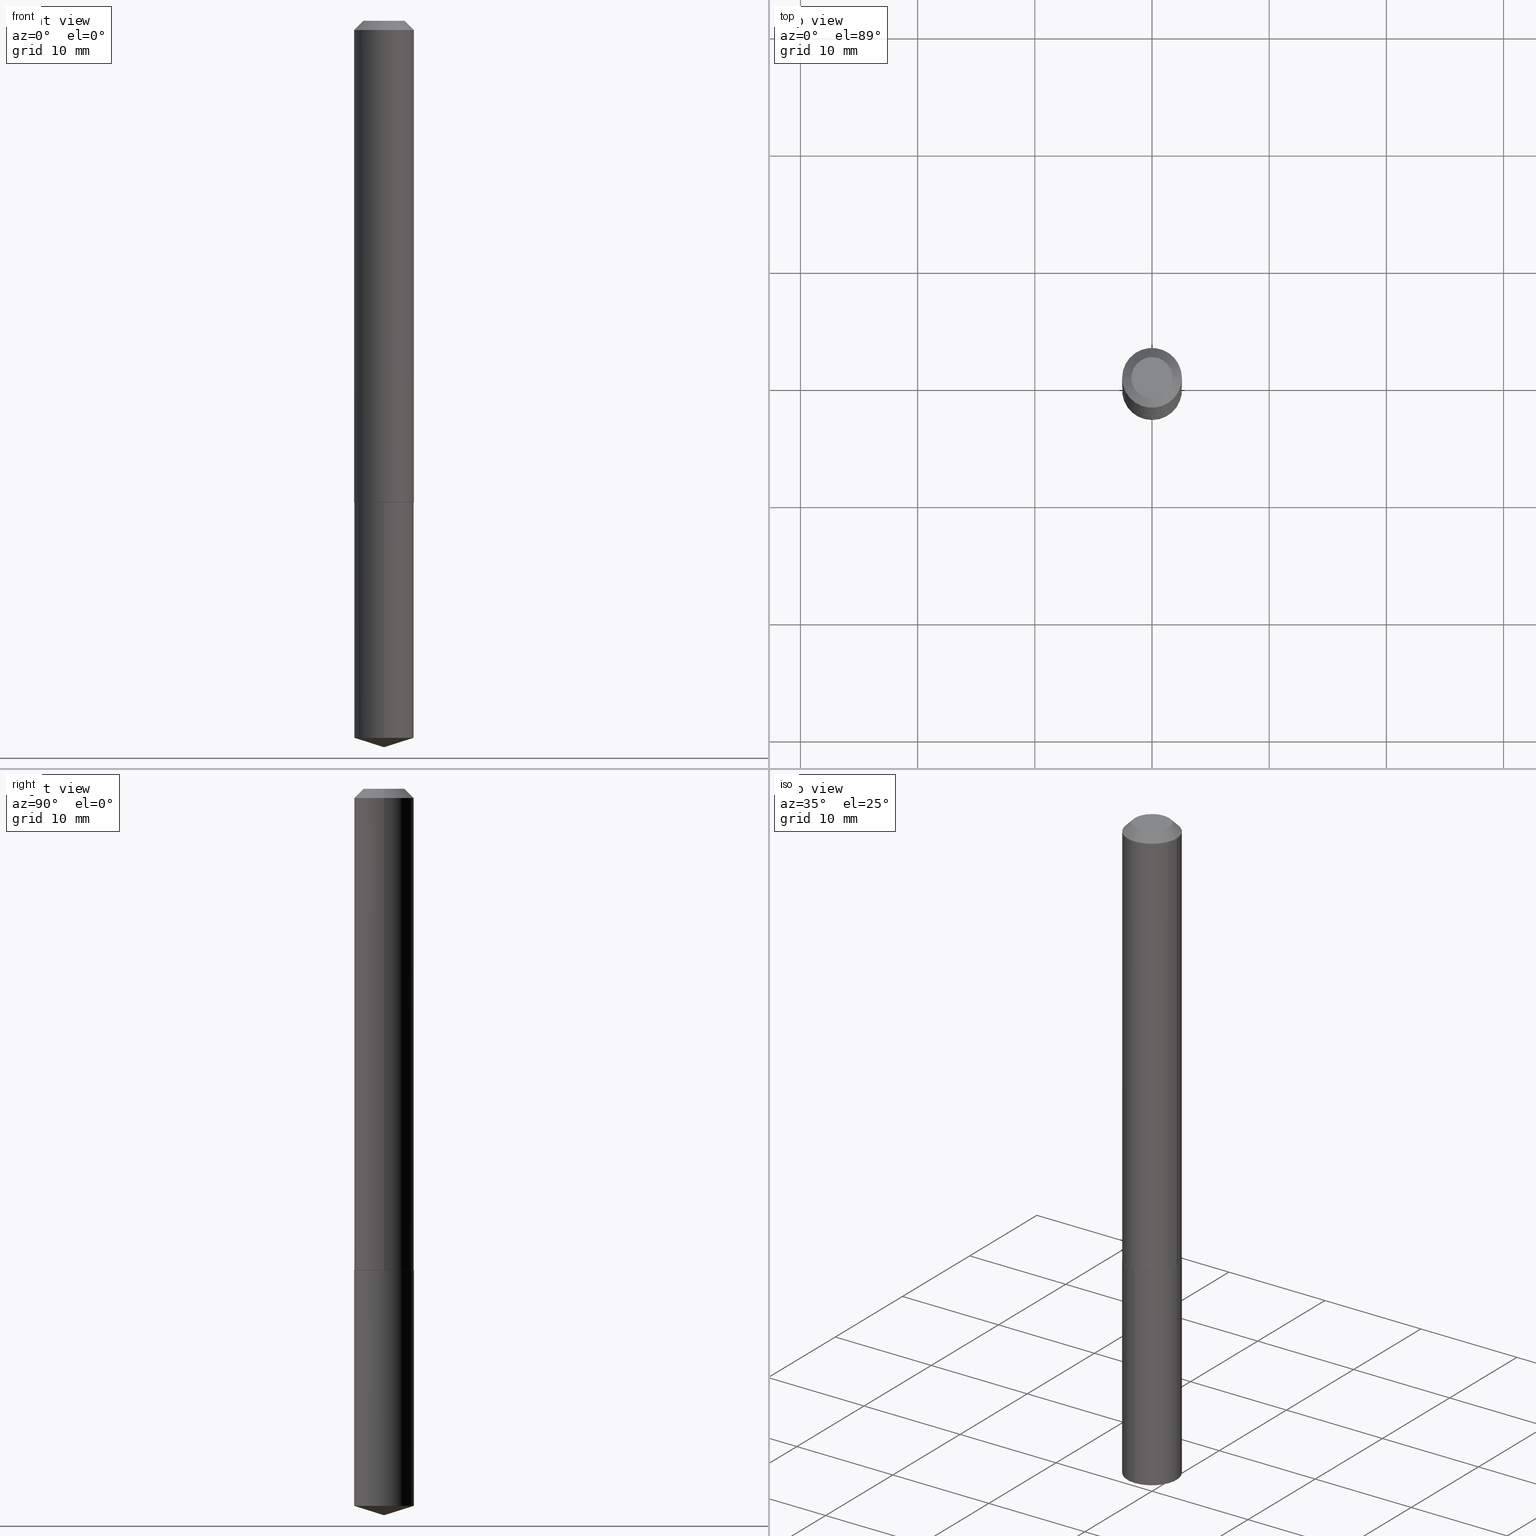
[diagram: canonical four-view strip — front | top / right | iso, engineering-drawing reading convention]
A machine part, canonical four-view strip (front | top / right | iso — engineering-drawing reading convention). The complete STEP part file that produces these views, byte-faithful:
ISO-10303-21;
HEADER;
FILE_DESCRIPTION (( 'STEP AP203' ),
    '1' );
FILE_NAME ('68699.STEP',
    '2024-04-23T13:41:58',
    ( '' ),
    ( '' ),
    'SwSTEP 2.0',
    'SolidWorks 2023',
    '' );
FILE_SCHEMA (( 'CONFIG_CONTROL_DESIGN' ));
ENDSEC;

DATA;
#1 = FACE_OUTER_BOUND ( 'NONE', #79, .T. ) ;
#2 = CARTESIAN_POINT ( 'NONE',  ( 0.1004000000000002113, -6.348909666552376614E-15, -1.617600000000000149 ) ) ;
#3 = ADVANCED_BREP_SHAPE_REPRESENTATION ( '68699', ( #178, #306, #172 ), #60 ) ;
#4 = FACE_OUTER_BOUND ( 'NONE', #185, .T. ) ;
#5 = CALENDAR_DATE ( 2024, 23, 4 ) ;
#6 = DIRECTION ( 'NONE',  ( -2.438088387897960049E-29, 3.491481338843145188E-15, 1.000000000000000000 ) ) ;
#7 = AXIS2_PLACEMENT_3D ( 'NONE', #35, #132, #333 ) ;
#8 = CC_DESIGN_APPROVAL ( #317, ( #89 ) ) ;
#9 = EDGE_CURVE ( 'NONE', #370, #316, #155, .T. ) ;
#10 = APPROVAL_ROLE ( '' ) ;
#11 = DIRECTION ( 'NONE',  ( -6.982962677686266711E-15, -1.000000000000000000, 2.720964137115799877E-15 ) ) ;
#12 = CIRCLE ( 'NONE', #161, 0.06915000000000000313 ) ;
#13 = CIRCLE ( 'NONE', #229, 0.06915000000000000313 ) ;
#14 = ORIENTED_EDGE ( 'NONE', *, *, #142, .F. ) ;
#15 = DIRECTION ( 'NONE',  ( -2.445468806185136597E-29, 3.491481338843145583E-15, 1.000000000000000000 ) ) ;
#16 = DIRECTION ( 'NONE',  ( -2.445468806185136597E-29, 3.491481338843145583E-15, 1.000000000000000000 ) ) ;
#17 = EDGE_CURVE ( 'NONE', #33, #53, #357, .T. ) ;
#18 = ORIENTED_EDGE ( 'NONE', *, *, #280, .T. ) ;
#19 = CC_DESIGN_APPROVAL ( #192, ( #324 ) ) ;
#20 = COORDINATED_UNIVERSAL_TIME_OFFSET ( 5, 0, .BEHIND. ) ;
#21 = CC_DESIGN_SECURITY_CLASSIFICATION ( #89, ( #74 ) ) ;
#22 = CIRCLE ( 'NONE', #241, 0.1004000000000000031 ) ;
#23 = ORIENTED_EDGE ( 'NONE', *, *, #142, .T. ) ;
#24 = DIRECTION ( 'NONE',  ( 1.000000000000000000, -6.982962677686267499E-15, 0.000000000000000000 ) ) ;
#25 = PERSON_AND_ORGANIZATION_ROLE ( 'classification_officer' ) ;
#26 = ORIENTED_EDGE ( 'NONE', *, *, #27, .T. ) ;
#27 = EDGE_CURVE ( 'NONE', #139, #370, #135, .T. ) ;
#28 = CIRCLE ( 'NONE', #136, 0.1004000000000000170 ) ;
#29 = DIRECTION ( 'NONE',  ( -2.445476300407817820E-29, 3.491470606689721326E-15, 1.000000000000000000 ) ) ;
#30 = MECHANICAL_CONTEXT ( 'NONE', #145, 'mechanical' ) ;
#31 = CC_DESIGN_PERSON_AND_ORGANIZATION_ASSIGNMENT ( #59, #25, ( #89 ) ) ;
#32 = DIRECTION ( 'NONE',  ( -6.982962677686268288E-15, -1.000000000000000000, 3.500519750498693782E-15 ) ) ;
#33 = VERTEX_POINT ( 'NONE', #334 ) ;
#34 = DIRECTION ( 'NONE',  ( -6.659769872151633666E-15, -0.9537169507482269326, 0.3007057995042729526 ) ) ;
#35 = CARTESIAN_POINT ( 'NONE',  ( 7.642090019328601786E-31, -1.091087918388490144E-16, -0.03125000000000020123 ) ) ;
#36 = PRODUCT ( '68699', '68699', '', ( #30 ) ) ;
#37 = AXIS2_PLACEMENT_3D ( 'NONE', #276, #63, #32 ) ;
#38 = FACE_OUTER_BOUND ( 'NONE', #239, .T. ) ;
#39 = CARTESIAN_POINT ( 'NONE',  ( 7.133849067031800519E-16, 0.1003999999999943549, -1.618100000000000316 ) ) ;
#40 = CONICAL_SURFACE ( 'NONE', #7, 0.1004000000000000170, 0.7853981633974452814 ) ;
#41 = CARTESIAN_POINT ( 'NONE',  ( 0.1004000000000000170, -7.979027908151110397E-16, -0.03125000000000020123 ) ) ;
#42 = EDGE_CURVE ( 'NONE', #139, #195, #22, .T. ) ;
#43 = EDGE_CURVE ( 'NONE', #195, #139, #277, .T. ) ;
#44 = DIRECTION ( 'NONE',  ( 2.445476300407817259E-29, -3.491470606689721721E-15, -1.000000000000000000 ) ) ;
#45 = ORIENTED_EDGE ( 'NONE', *, *, #292, .F. ) ;
#46 = CARTESIAN_POINT ( 'NONE',  ( 0.1004000000000001142, -7.010894528397019642E-16, 4.895681482899124760E-30 ) ) ;
#47 = VERTEX_POINT ( 'NONE', #359 ) ;
#48 = DIRECTION ( 'NONE',  ( -1.000000000000000000, 6.982962677686266711E-15, 0.000000000000000000 ) ) ;
#49 = ORIENTED_EDGE ( 'NONE', *, *, #43, .F. ) ;
#50 = DIRECTION ( 'NONE',  ( 2.445468806185136597E-29, -3.491481338843145583E-15, -1.000000000000000000 ) ) ;
#51 = PERSON_AND_ORGANIZATION ( #194, #193 ) ;
#52 = CC_DESIGN_DATE_AND_TIME_ASSIGNMENT ( #213, #321, ( #324 ) ) ;
#53 = VERTEX_POINT ( 'NONE', #70 ) ;
#54 = CARTESIAN_POINT ( 'NONE',  ( 3.955790340885077095E-29, -5.647820213712673171E-15, -1.617600000000000149 ) ) ;
#55 = CONICAL_SURFACE ( 'NONE', #114, 0.1004000000000000170, 0.7853981633974452814 ) ;
#56 = CIRCLE ( 'NONE', #91, 0.1004000000000002113 ) ;
#57 = ORIENTED_EDGE ( 'NONE', *, *, #338, .F. ) ;
#58 = DIRECTION ( 'NONE',  ( -2.445476300407817820E-29, 3.491470606689721326E-15, 1.000000000000000000 ) ) ;
#59 = PERSON_AND_ORGANIZATION ( #194, #193 ) ;
#60 =( GEOMETRIC_REPRESENTATION_CONTEXT ( 3 ) GLOBAL_UNCERTAINTY_ASSIGNED_CONTEXT ( ( #369 ) ) GLOBAL_UNIT_ASSIGNED_CONTEXT ( ( #64, #350, #209 ) ) REPRESENTATION_CONTEXT ( 'NONE', 'WORKASPACE' ) );
#61 = CARTESIAN_POINT ( 'NONE',  ( -0.1004000000000001142, 7.133849067031413977E-16, -4.938610830615930599E-30 ) ) ;
#62 = ADVANCED_FACE ( 'NONE', ( #38 ), #304, .T. ) ;
#63 = DIRECTION ( 'NONE',  ( -2.445476300407817820E-29, 3.491470606689721326E-15, 1.000000000000000000 ) ) ;
#64 =( CONVERSION_BASED_UNIT ( 'INCH', #176 ) LENGTH_UNIT ( ) NAMED_UNIT ( #71 ) );
#65 = EDGE_LOOP ( 'NONE', ( #339, #270, #92, #271 ) ) ;
#66 = DIRECTION ( 'NONE',  ( 1.000000000000000000, -6.982962677686266711E-15, 4.876176775795935232E-29 ) ) ;
#67 = CARTESIAN_POINT ( 'NONE',  ( -7.010894528396423066E-16, -0.1004000000000084408, -2.409244001596550167 ) ) ;
#68 = LOCAL_TIME ( 9, 41, 58.00000000000000000, #122 ) ;
#69 = DIRECTION ( 'NONE',  ( -6.982962677686266711E-15, -1.000000000000000000, 2.720964137115799877E-15 ) ) ;
#70 = CARTESIAN_POINT ( 'NONE',  ( 0.1004000000000000170, -8.101982446785503746E-16, -0.03125000000000020123 ) ) ;
#71 = DIMENSIONAL_EXPONENTS ( 1.000000000000000000, 0.000000000000000000, 0.000000000000000000, 0.000000000000000000, 0.000000000000000000, 0.000000000000000000, 0.000000000000000000 ) ;
#72 = APPROVAL ( #86, 'UNSPECIFIED' ) ;
#73 = EDGE_CURVE ( 'NONE', #33, #299, #13, .T. ) ;
#74 = PRODUCT_DEFINITION_FORMATION_WITH_SPECIFIED_SOURCE ( 'ANY', '', #36, .NOT_KNOWN. ) ;
#75 = AXIS2_PLACEMENT_3D ( 'NONE', #152, #298, #96 ) ;
#76 = DIRECTION ( 'NONE',  ( 1.000000000000000000, -6.982962677686261977E-15, 0.000000000000000000 ) ) ;
#77 = EDGE_LOOP ( 'NONE', ( #211, #169 ) ) ;
#78 = CARTESIAN_POINT ( 'NONE',  ( -7.010894528396616337E-16, -0.1004000000000056514, -1.618099999999999872 ) ) ;
#79 = EDGE_LOOP ( 'NONE', ( #57, #263 ) ) ;
#80 = CARTESIAN_POINT ( 'NONE',  ( 7.133849067031995762E-16, 0.1003999999999943549, -1.618100000000000316 ) ) ;
#81 = VERTEX_POINT ( 'NONE', #384 ) ;
#82 = DATE_AND_TIME ( #116, #228 ) ;
#83 = ORIENTED_EDGE ( 'NONE', *, *, #27, .F. ) ;
#84 = CARTESIAN_POINT ( 'NONE',  ( -2.919964657261610798E-48, 4.168935659749573735E-34, 1.194030629168676459E-19 ) ) ;
#85 = EDGE_CURVE ( 'NONE', #288, #47, #219, .T. ) ;
#86 = APPROVAL_STATUS ( 'not_yet_approved' ) ;
#87 = ORIENTED_EDGE ( 'NONE', *, *, #361, .T. ) ;
#88 = VECTOR ( 'NONE', #34, 39.37007874015748854 ) ;
#89 = SECURITY_CLASSIFICATION ( '', '', #290 ) ;
#90 = PRODUCT_DEFINITION_SHAPE ( 'NONE', 'NONE',  #324 ) ;
#91 = AXIS2_PLACEMENT_3D ( 'NONE', #154, #221, #222 ) ;
#92 = ORIENTED_EDGE ( 'NONE', *, *, #292, .T. ) ;
#93 = DIRECTION ( 'NONE',  ( 0.000000000000000000, 0.000000000000000000, 1.000000000000000000 ) ) ;
#94 = CC_DESIGN_DATE_AND_TIME_ASSIGNMENT ( #235, #177, ( #89 ) ) ;
#95 = EDGE_LOOP ( 'NONE', ( #128, #26, #141, #268 ) ) ;
#96 = DIRECTION ( 'NONE',  ( -6.982962677686268288E-15, -1.000000000000000000, 3.500519750498693782E-15 ) ) ;
#97 = EDGE_CURVE ( 'NONE', #157, #195, #100, .T. ) ;
#98 = ORIENTED_EDGE ( 'NONE', *, *, #42, .T. ) ;
#99 = DIRECTION ( 'NONE',  ( 1.000000000000000000, -6.982962677686267499E-15, 4.876193722628741627E-29 ) ) ;
#100 = LINE ( 'NONE', #130, #88 ) ;
#101 = CARTESIAN_POINT ( 'NONE',  ( 5.891736981402338159E-29, -8.411821981615335412E-15, -2.409244001596550611 ) ) ;
#102 = ADVANCED_FACE ( 'NONE', ( #253 ), #120, .T. ) ;
#103 = CARTESIAN_POINT ( 'NONE',  ( 5.891736981402338159E-29, -8.411821981615335412E-15, -2.409244001596550611 ) ) ;
#104 = VECTOR ( 'NONE', #278, 39.37007874015748143 ) ;
#105 = ADVANCED_FACE ( 'NONE', ( #356 ), #106, .T. ) ;
#106 = CYLINDRICAL_SURFACE ( 'NONE', #108, 0.1004000000000000031 ) ;
#107 = VECTOR ( 'NONE', #181, 39.37007874015748143 ) ;
#108 = AXIS2_PLACEMENT_3D ( 'NONE', #362, #251, #69 ) ;
#109 = DIRECTION ( 'NONE',  ( 0.7071067811867165487, -2.468850131084027659E-15, 0.7071067811863784858 ) ) ;
#110 = ORIENTED_EDGE ( 'NONE', *, *, #146, .F. ) ;
#111 = DIRECTION ( 'NONE',  ( 6.776566513254258926E-15, 0.9537169507482290420, 0.3007057995042663467 ) ) ;
#112 = PERSON_AND_ORGANIZATION ( #194, #193 ) ;
#113 = EDGE_LOOP ( 'NONE', ( #379, #218, #14, #272 ) ) ;
#114 = AXIS2_PLACEMENT_3D ( 'NONE', #315, #50, #48 ) ;
#115 = DIRECTION ( 'NONE',  ( -2.445468806185136597E-29, 3.491481338843145583E-15, 1.000000000000000000 ) ) ;
#116 = CALENDAR_DATE ( 2024, 23, 4 ) ;
#117 = LINE ( 'NONE', #46, #265 ) ;
#118 = ORIENTED_EDGE ( 'NONE', *, *, #377, .F. ) ;
#119 = PERSON_AND_ORGANIZATION_ROLE ( 'design_supplier' ) ;
#120 = CONICAL_SURFACE ( 'NONE', #37, 124.8659371009154455, 1.265363707695892570 ) ;
#121 = AXIS2_PLACEMENT_3D ( 'NONE', #166, #15, #24 ) ;
#122 = COORDINATED_UNIVERSAL_TIME_OFFSET ( 5, 0, .BEHIND. ) ;
#123 = CALENDAR_DATE ( 2024, 23, 4 ) ;
#124 = CARTESIAN_POINT ( 'NONE',  ( -0.1004000000000000170, 5.919806610008522719E-16, -0.03125000000000020123 ) ) ;
#125 = DIRECTION ( 'NONE',  ( 1.000000000000000000, -6.982962677686267499E-15, 4.876193722628741627E-29 ) ) ;
#126 = CC_DESIGN_PERSON_AND_ORGANIZATION_ASSIGNMENT ( #171, #375, ( #324 ) ) ;
#127 = CIRCLE ( 'NONE', #133, 0.1004000000000000031 ) ;
#128 = ORIENTED_EDGE ( 'NONE', *, *, #43, .T. ) ;
#129 = CARTESIAN_POINT ( 'NONE',  ( 0.000000000000000000, 0.000000000000000000, 0.000000000000000000 ) ) ;
#130 = CARTESIAN_POINT ( 'NONE',  ( 5.969138848862001907E-29, -8.522365335263852406E-15, -2.440900000000000070 ) ) ;
#131 = DIRECTION ( 'NONE',  ( -0.7071067811867165487, 7.493145998870964739E-15, 0.7071067811863784858 ) ) ;
#132 = DIRECTION ( 'NONE',  ( 2.445468806185136597E-29, -3.491481338843145583E-15, -1.000000000000000000 ) ) ;
#133 = AXIS2_PLACEMENT_3D ( 'NONE', #337, #231, #11 ) ;
#134 = CC_DESIGN_PERSON_AND_ORGANIZATION_ASSIGNMENT ( #380, #347, ( #36 ) ) ;
#135 = LINE ( 'NONE', #39, #158 ) ;
#136 = AXIS2_PLACEMENT_3D ( 'NONE', #255, #309, #293 ) ;
#137 = CIRCLE ( 'NONE', #351, 0.1004000000000002113 ) ;
#138 = CARTESIAN_POINT ( 'NONE',  ( -0.06915000000000000313, 5.374262650814288063E-16, 2.388061258301678436E-19 ) ) ;
#139 = VERTEX_POINT ( 'NONE', #301 ) ;
#140 = PLANE ( 'NONE',  #254 ) ;
#141 = ORIENTED_EDGE ( 'NONE', *, *, #296, .F. ) ;
#142 = EDGE_CURVE ( 'NONE', #236, #47, #56, .T. ) ;
#143 = VECTOR ( 'NONE', #330, 39.37007874015748143 ) ;
#144 = CALENDAR_DATE ( 2024, 23, 4 ) ;
#145 = APPLICATION_CONTEXT ( 'configuration controlled 3d designs of mechanical parts and assemblies' ) ;
#146 = EDGE_CURVE ( 'NONE', #47, #236, #137, .T. ) ;
#147 = FACE_OUTER_BOUND ( 'NONE', #77, .T. ) ;
#148 = APPROVAL_ROLE ( '' ) ;
#149 = ORIENTED_EDGE ( 'NONE', *, *, #17, .F. ) ;
#150 = AXIS2_PLACEMENT_3D ( 'NONE', #129, #220, #66 ) ;
#151 = EDGE_LOOP ( 'NONE', ( #310, #215, #18, #204 ) ) ;
#152 = CARTESIAN_POINT ( 'NONE',  ( -9.030944352898107667E-28, 1.289371247347533439E-13, 36.92917874015748225 ) ) ;
#153 = DIRECTION ( 'NONE',  ( -2.445468806185136597E-29, 3.491481338843145583E-15, 1.000000000000000000 ) ) ;
#154 = CARTESIAN_POINT ( 'NONE',  ( 3.955790340885077095E-29, -5.647820213712673171E-15, -1.617600000000000149 ) ) ;
#155 = CIRCLE ( 'NONE', #368, 0.1004000000000000031 ) ;
#156 = AXIS2_PLACEMENT_3D ( 'NONE', #202, #230, #199 ) ;
#157 = VERTEX_POINT ( 'NONE', #186 ) ;
#158 = VECTOR ( 'NONE', #224, 39.37007874015748143 ) ;
#159 = LINE ( 'NONE', #297, #104 ) ;
#160 = DIRECTION ( 'NONE',  ( 1.000000000000000000, -6.982962677686267499E-15, 0.000000000000000000 ) ) ;
#161 = AXIS2_PLACEMENT_3D ( 'NONE', #249, #303, #99 ) ;
#162 = ADVANCED_FACE ( 'NONE', ( #4 ), #275, .T. ) ;
#163 = EDGE_LOOP ( 'NONE', ( #322, #283, #349, #110 ) ) ;
#164 = APPROVAL_DATE_TIME ( #191, #192 ) ;
#165 = AXIS2_PLACEMENT_3D ( 'NONE', #312, #115, #76 ) ;
#166 = CARTESIAN_POINT ( 'NONE',  ( 3.955790340885077095E-29, -5.647820213712673171E-15, -1.617600000000000149 ) ) ;
#167 = EDGE_LOOP ( 'NONE', ( #295, #207 ) ) ;
#168 = CARTESIAN_POINT ( 'NONE',  ( 7.642090019328601786E-31, -1.091087918388490144E-16, -0.03125000000000020123 ) ) ;
#169 = ORIENTED_EDGE ( 'NONE', *, *, #73, .T. ) ;
#170 = DESIGN_CONTEXT ( 'detailed design', #248, 'design' ) ;
#171 = PERSON_AND_ORGANIZATION ( #194, #193 ) ;
#172 = AXIS2_PLACEMENT_3D ( 'NONE', #352, #93, #214 ) ;
#173 = DIRECTION ( 'NONE',  ( 1.000000000000000000, -6.982962677686267499E-15, 0.000000000000000000 ) ) ;
#174 = ORIENTED_EDGE ( 'NONE', *, *, #212, .T. ) ;
#175 = DIRECTION ( 'NONE',  ( -6.982962677686266711E-15, -1.000000000000000000, 2.720964137115799877E-15 ) ) ;
#176 = LENGTH_MEASURE_WITH_UNIT ( LENGTH_MEASURE( 0.02539999999999999897 ), #289 );
#177 = DATE_TIME_ROLE ( 'classification_date' ) ;
#178 = MANIFOLD_SOLID_BREP ( 'Body-Move/Copy2[1]', #210 ) ;
#179 = APPLICATION_PROTOCOL_DEFINITION ( 'international standard', 'config_control_design', 1994, #145 ) ;
#180 = CIRCLE ( 'NONE', #358, 0.1004000000000000170 ) ;
#181 = DIRECTION ( 'NONE',  ( -2.445468806185136877E-29, 3.491481338843145188E-15, 1.000000000000000000 ) ) ;
#182 = PRODUCT_RELATED_PRODUCT_CATEGORY ( 'detail', '', ( #36 ) ) ;
#183 = APPLICATION_PROTOCOL_DEFINITION ( 'international standard', 'config_control_design', 1994, #248 ) ;
#184 = DIRECTION ( 'NONE',  ( -2.445468806185136597E-29, 3.491481338843145583E-15, 1.000000000000000000 ) ) ;
#185 = EDGE_LOOP ( 'NONE', ( #23, #243, #346, #45 ) ) ;
#186 = CARTESIAN_POINT ( 'NONE',  ( 5.969163101665442334E-29, -8.522330603868942741E-15, -2.440900000000000070 ) ) ;
#187 = LOCAL_TIME ( 9, 41, 58.00000000000000000, #226 ) ;
#188 = DIRECTION ( 'NONE',  ( -6.982962677686266711E-15, -1.000000000000000000, 2.720964137115799877E-15 ) ) ;
#189 = CARTESIAN_POINT ( 'NONE',  ( 7.046853999723116167E-29, -1.224737887767343229E-15, -1.618099999999999872 ) ) ;
#190 = EDGE_CURVE ( 'NONE', #47, #81, #273, .T. ) ;
#191 = DATE_AND_TIME ( #5, #187 ) ;
#192 = APPROVAL ( #300, 'UNSPECIFIED' ) ;
#193 = ORGANIZATION ( 'UNSPECIFIED', 'UNSPECIFIED', '' ) ;
#194 = PERSON ( 'UNSPECIFIED', 'UNSPECIFIED', 'UNSPECIFIED', ('UNSPECIFIED'), ('UNSPECIFIED'), ('UNSPECIFIED') ) ;
#195 = VERTEX_POINT ( 'NONE', #67 ) ;
#196 = FACE_OUTER_BOUND ( 'NONE', #163, .T. ) ;
#197 = ORIENTED_EDGE ( 'NONE', *, *, #9, .F. ) ;
#198 = AXIS2_PLACEMENT_3D ( 'NONE', #388, #328, #279 ) ;
#199 = DIRECTION ( 'NONE',  ( -6.982962677686266711E-15, -1.000000000000000000, 2.720964137115799877E-15 ) ) ;
#200 = COORDINATED_UNIVERSAL_TIME_OFFSET ( 5, 0, .BEHIND. ) ;
#201 = ORIENTED_EDGE ( 'NONE', *, *, #42, .F. ) ;
#202 = CARTESIAN_POINT ( 'NONE',  ( 3.957013075288169897E-29, -5.649565954382093886E-15, -1.618100000000000094 ) ) ;
#203 = APPROVAL_DATE_TIME ( #82, #72 ) ;
#204 = ORIENTED_EDGE ( 'NONE', *, *, #212, .F. ) ;
#205 = FACE_OUTER_BOUND ( 'NONE', #113, .T. ) ;
#206 = PERSON_AND_ORGANIZATION_ROLE ( 'creator' ) ;
#207 = ORIENTED_EDGE ( 'NONE', *, *, #9, .T. ) ;
#208 = AXIS2_PLACEMENT_3D ( 'NONE', #329, #184, #366 ) ;
#209 =( NAMED_UNIT ( * ) SI_UNIT ( $, .STERADIAN. ) SOLID_ANGLE_UNIT ( ) );
#210 = CLOSED_SHELL ( 'NONE', ( #105, #62, #102, #381, #365 ) ) ;
#211 = ORIENTED_EDGE ( 'NONE', *, *, #237, .T. ) ;
#212 = EDGE_CURVE ( 'NONE', #299, #81, #360, .T. ) ;
#213 = DATE_AND_TIME ( #353, #68 ) ;
#214 = DIRECTION ( 'NONE',  ( 1.000000000000000000, 0.000000000000000000, 0.000000000000000000 ) ) ;
#215 = ORIENTED_EDGE ( 'NONE', *, *, #17, .T. ) ;
#216 = CARTESIAN_POINT ( 'NONE',  ( -0.1004000000000002113, -4.934435307009531477E-15, -1.617600000000000149 ) ) ;
#217 = SHAPE_DEFINITION_REPRESENTATION ( #90, #3 ) ;
#218 = ORIENTED_EDGE ( 'NONE', *, *, #85, .T. ) ;
#219 = LINE ( 'NONE', #216, #266 ) ;
#220 = DIRECTION ( 'NONE',  ( -2.445468806185136597E-29, 3.491481338843145583E-15, 1.000000000000000000 ) ) ;
#221 = DIRECTION ( 'NONE',  ( -2.445468806185136597E-29, 3.491481338843145583E-15, 1.000000000000000000 ) ) ;
#222 = DIRECTION ( 'NONE',  ( 1.000000000000000000, -6.982962677686267499E-15, 0.000000000000000000 ) ) ;
#223 = FACE_OUTER_BOUND ( 'NONE', #151, .T. ) ;
#224 = DIRECTION ( 'NONE',  ( -2.445476300407817820E-29, 3.491470606689721721E-15, 1.000000000000000000 ) ) ;
#225 = FACE_OUTER_BOUND ( 'NONE', #65, .T. ) ;
#226 = COORDINATED_UNIVERSAL_TIME_OFFSET ( 5, 0, .BEHIND. ) ;
#227 = EDGE_CURVE ( 'NONE', #195, #316, #159, .T. ) ;
#228 = LOCAL_TIME ( 9, 41, 58.00000000000000000, #262 ) ;
#229 = AXIS2_PLACEMENT_3D ( 'NONE', #386, #153, #125 ) ;
#230 = DIRECTION ( 'NONE',  ( -2.445476300407817820E-29, 3.491470606689721326E-15, 1.000000000000000000 ) ) ;
#231 = DIRECTION ( 'NONE',  ( -2.445476300407817820E-29, 3.491470606689721326E-15, 1.000000000000000000 ) ) ;
#232 = VERTEX_POINT ( 'NONE', #244 ) ;
#233 = CC_DESIGN_PERSON_AND_ORGANIZATION_ASSIGNMENT ( #51, #206, ( #74 ) ) ;
#234 = FACE_OUTER_BOUND ( 'NONE', #247, .T. ) ;
#235 = DATE_AND_TIME ( #144, #305 ) ;
#236 = VERTEX_POINT ( 'NONE', #2 ) ;
#237 = EDGE_CURVE ( 'NONE', #299, #33, #12, .T. ) ;
#238 = FACE_OUTER_BOUND ( 'NONE', #167, .T. ) ;
#239 = EDGE_LOOP ( 'NONE', ( #260, #319, #49 ) ) ;
#240 = DIRECTION ( 'NONE',  ( 1.000000000000000000, -6.982962677686266711E-15, 0.000000000000000000 ) ) ;
#241 = AXIS2_PLACEMENT_3D ( 'NONE', #101, #372, #378 ) ;
#242 = APPROVAL_PERSON_ORGANIZATION ( #112, #317, #148 ) ;
#243 = ORIENTED_EDGE ( 'NONE', *, *, #190, .T. ) ;
#244 = CARTESIAN_POINT ( 'NONE',  ( 0.09990000000000034963, -6.347163925882952744E-15, -1.618099999999999872 ) ) ;
#245 = ADVANCED_FACE ( 'NONE', ( #223 ), #40, .T. ) ;
#246 = AXIS2_PLACEMENT_3D ( 'NONE', #189, #6, #285 ) ;
#247 = EDGE_LOOP ( 'NONE', ( #83, #98, #286, #197 ) ) ;
#248 = APPLICATION_CONTEXT ( 'configuration controlled 3d designs of mechanical parts and assemblies' ) ;
#249 = CARTESIAN_POINT ( 'NONE',  ( -5.839929314523221596E-48, 8.337871319499147471E-34, 2.388061258337352918E-19 ) ) ;
#250 = PLANE ( 'NONE',  #246 ) ;
#251 = DIRECTION ( 'NONE',  ( -2.445476300407817820E-29, 3.491470606689721326E-15, 1.000000000000000000 ) ) ;
#252 = EDGE_CURVE ( 'NONE', #288, #232, #374, .T. ) ;
#253 = FACE_OUTER_BOUND ( 'NONE', #326, .T. ) ;
#254 = AXIS2_PLACEMENT_3D ( 'NONE', #84, #267, #282 ) ;
#255 = CARTESIAN_POINT ( 'NONE',  ( 7.642090019328601786E-31, -1.091087918388490144E-16, -0.03125000000000020123 ) ) ;
#256 = ADVANCED_FACE ( 'NONE', ( #225 ), #335, .T. ) ;
#257 = VECTOR ( 'NONE', #307, 39.37007874015748143 ) ;
#258 = CC_DESIGN_APPROVAL ( #72, ( #74 ) ) ;
#259 = CARTESIAN_POINT ( 'NONE',  ( -0.09990000000000034963, -4.937084534183641101E-15, -1.618099999999999872 ) ) ;
#260 = ORIENTED_EDGE ( 'NONE', *, *, #97, .F. ) ;
#261 = DIRECTION ( 'NONE',  ( -2.445468806185136597E-29, 3.491481338843145583E-15, 1.000000000000000000 ) ) ;
#262 = COORDINATED_UNIVERSAL_TIME_OFFSET ( 5, 0, .BEHIND. ) ;
#263 = ORIENTED_EDGE ( 'NONE', *, *, #252, .F. ) ;
#264 = CARTESIAN_POINT ( 'NONE',  ( 0.1004000000000002113, -6.348909666552376614E-15, -1.617600000000000149 ) ) ;
#265 = VECTOR ( 'NONE', #340, 39.37007874015748143 ) ;
#266 = VECTOR ( 'NONE', #131, 39.37007874015748143 ) ;
#267 = DIRECTION ( 'NONE',  ( 2.438088387897960049E-29, -3.491481338843145188E-15, -1.000000000000000000 ) ) ;
#268 = ORIENTED_EDGE ( 'NONE', *, *, #227, .F. ) ;
#269 = LINE ( 'NONE', #371, #336 ) ;
#270 = ORIENTED_EDGE ( 'NONE', *, *, #146, .T. ) ;
#271 = ORIENTED_EDGE ( 'NONE', *, *, #361, .F. ) ;
#272 = ORIENTED_EDGE ( 'NONE', *, *, #311, .F. ) ;
#273 = LINE ( 'NONE', #61, #107 ) ;
#274 = ADVANCED_FACE ( 'NONE', ( #1 ), #250, .F. ) ;
#275 = CYLINDRICAL_SURFACE ( 'NONE', #198, 0.1004000000000001142 ) ;
#276 = CARTESIAN_POINT ( 'NONE',  ( -9.030944352898107667E-28, 1.289371247347533439E-13, 36.92917874015748225 ) ) ;
#277 = CIRCLE ( 'NONE', #376, 0.1004000000000000031 ) ;
#278 = DIRECTION ( 'NONE',  ( -2.445476300407817820E-29, 3.491470606689721721E-15, 1.000000000000000000 ) ) ;
#279 = DIRECTION ( 'NONE',  ( 1.000000000000000000, -6.982962677686266711E-15, 4.876176775795935232E-29 ) ) ;
#280 = EDGE_CURVE ( 'NONE', #53, #81, #28, .T. ) ;
#281 = CIRCLE ( 'NONE', #165, 0.09990000000000034963 ) ;
#282 = DIRECTION ( 'NONE',  ( -1.000000000000000000, 6.982962677686265922E-15, -4.876176775795935793E-29 ) ) ;
#283 = ORIENTED_EDGE ( 'NONE', *, *, #252, .T. ) ;
#284 = LINE ( 'NONE', #264, #332 ) ;
#285 = DIRECTION ( 'NONE',  ( 1.000000000000000000, -6.982962677686265922E-15, 4.876176775795935793E-29 ) ) ;
#286 = ORIENTED_EDGE ( 'NONE', *, *, #227, .T. ) ;
#287 = FACE_OUTER_BOUND ( 'NONE', #341, .T. ) ;
#288 = VERTEX_POINT ( 'NONE', #259 ) ;
#289 =( LENGTH_UNIT ( ) NAMED_UNIT ( * ) SI_UNIT ( $, .METRE. ) );
#290 = SECURITY_CLASSIFICATION_LEVEL ( 'unclassified' ) ;
#291 = APPROVAL_PERSON_ORGANIZATION ( #294, #72, #318 ) ;
#292 = EDGE_CURVE ( 'NONE', #236, #53, #117, .T. ) ;
#293 = DIRECTION ( 'NONE',  ( 1.000000000000000000, -6.982962677686266711E-15, 0.000000000000000000 ) ) ;
#294 = PERSON_AND_ORGANIZATION ( #194, #193 ) ;
#295 = ORIENTED_EDGE ( 'NONE', *, *, #296, .T. ) ;
#296 = EDGE_CURVE ( 'NONE', #316, #370, #127, .T. ) ;
#297 = CARTESIAN_POINT ( 'NONE',  ( -7.010894528396616337E-16, -0.1004000000000056514, -1.618099999999999872 ) ) ;
#298 = DIRECTION ( 'NONE',  ( -2.445476300407817820E-29, 3.491470606689721326E-15, 1.000000000000000000 ) ) ;
#299 = VERTEX_POINT ( 'NONE', #138 ) ;
#300 = APPROVAL_STATUS ( 'not_yet_approved' ) ;
#301 = CARTESIAN_POINT ( 'NONE',  ( 7.133849067031996748E-16, 0.1003999999999916209, -2.409244001596551055 ) ) ;
#302 = PERSON_AND_ORGANIZATION ( #194, #193 ) ;
#303 = DIRECTION ( 'NONE',  ( -2.445468806185136597E-29, 3.491481338843145583E-15, 1.000000000000000000 ) ) ;
#304 = CONICAL_SURFACE ( 'NONE', #75, 124.8659371009154455, 1.265363707695892570 ) ;
#305 = LOCAL_TIME ( 9, 41, 58.00000000000000000, #20 ) ;
#306 = MANIFOLD_SOLID_BREP ( 'Body-Move/Copy2[2]', #389 ) ;
#307 = DIRECTION ( 'NONE',  ( 0.7071067811865453523, -7.319954787623248157E-15, -0.7071067811865496822 ) ) ;
#308 = ADVANCED_FACE ( 'NONE', ( #147 ), #140, .F. ) ;
#309 = DIRECTION ( 'NONE',  ( -2.445468806185136597E-29, 3.491481338843145583E-15, 1.000000000000000000 ) ) ;
#310 = ORIENTED_EDGE ( 'NONE', *, *, #73, .F. ) ;
#311 = EDGE_CURVE ( 'NONE', #232, #236, #284, .T. ) ;
#312 = CARTESIAN_POINT ( 'NONE',  ( 3.957013075288169336E-29, -5.649565954382093097E-15, -1.618099999999999872 ) ) ;
#313 = APPROVAL_PERSON_ORGANIZATION ( #302, #192, #10 ) ;
#314 = ORIENTED_EDGE ( 'NONE', *, *, #237, .F. ) ;
#315 = CARTESIAN_POINT ( 'NONE',  ( 7.642090019328601786E-31, -1.091087918388490144E-16, -0.03125000000000020123 ) ) ;
#316 = VERTEX_POINT ( 'NONE', #78 ) ;
#317 = APPROVAL ( #344, 'UNSPECIFIED' ) ;
#318 = APPROVAL_ROLE ( '' ) ;
#319 = ORIENTED_EDGE ( 'NONE', *, *, #377, .T. ) ;
#320 = CARTESIAN_POINT ( 'NONE',  ( 3.957013075288169897E-29, -5.649565954382093886E-15, -1.618100000000000094 ) ) ;
#321 = DATE_TIME_ROLE ( 'creation_date' ) ;
#322 = ORIENTED_EDGE ( 'NONE', *, *, #85, .F. ) ;
#323 = CARTESIAN_POINT ( 'NONE',  ( 3.957013075288169897E-29, -5.649565954382093886E-15, -1.618100000000000094 ) ) ;
#324 = PRODUCT_DEFINITION ( 'UNKNOWN', '', #74, #170 ) ;
#325 = PERSON_AND_ORGANIZATION ( #194, #193 ) ;
#326 = EDGE_LOOP ( 'NONE', ( #118, #354, #201 ) ) ;
#327 = CONICAL_SURFACE ( 'NONE', #382, 0.1004000000000002113, 0.7853981633976873100 ) ;
#328 = DIRECTION ( 'NONE',  ( -2.445468806185136597E-29, 3.491481338843145583E-15, 1.000000000000000000 ) ) ;
#329 = CARTESIAN_POINT ( 'NONE',  ( 3.957013075288169336E-29, -5.649565954382093097E-15, -1.618099999999999872 ) ) ;
#330 = DIRECTION ( 'NONE',  ( -0.7071067811865453523, 2.468850131082234184E-15, -0.7071067811865496822 ) ) ;
#331 = DIRECTION ( 'NONE',  ( -2.445468806185136597E-29, 3.491481338843145583E-15, 1.000000000000000000 ) ) ;
#332 = VECTOR ( 'NONE', #109, 39.37007874015748143 ) ;
#333 = DIRECTION ( 'NONE',  ( -1.000000000000000000, 6.982962677686266711E-15, 0.000000000000000000 ) ) ;
#334 = CARTESIAN_POINT ( 'NONE',  ( 0.06915000000000000313, -6.361531136805061115E-16, 2.388061258376474814E-19 ) ) ;
#335 = CYLINDRICAL_SURFACE ( 'NONE', #150, 0.1004000000000001142 ) ;
#336 = VECTOR ( 'NONE', #111, 39.37007874015748143 ) ;
#337 = CARTESIAN_POINT ( 'NONE',  ( 3.957013075288169897E-29, -5.649565954382093886E-15, -1.618100000000000094 ) ) ;
#338 = EDGE_CURVE ( 'NONE', #232, #288, #281, .T. ) ;
#339 = ORIENTED_EDGE ( 'NONE', *, *, #190, .F. ) ;
#340 = DIRECTION ( 'NONE',  ( -2.445468806185136877E-29, 3.491481338843145188E-15, 1.000000000000000000 ) ) ;
#341 = EDGE_LOOP ( 'NONE', ( #149, #314, #174, #87 ) ) ;
#342 = ADVANCED_FACE ( 'NONE', ( #196 ), #364, .T. ) ;
#343 = CYLINDRICAL_SURFACE ( 'NONE', #156, 0.1004000000000000031 ) ;
#344 = APPROVAL_STATUS ( 'not_yet_approved' ) ;
#345 = LOCAL_TIME ( 9, 41, 58.00000000000000000, #200 ) ;
#346 = ORIENTED_EDGE ( 'NONE', *, *, #280, .F. ) ;
#347 = PERSON_AND_ORGANIZATION_ROLE ( 'design_owner' ) ;
#348 = DIRECTION ( 'NONE',  ( 6.982962677686265922E-15, 1.000000000000000000, -3.491470606689721721E-15 ) ) ;
#349 = ORIENTED_EDGE ( 'NONE', *, *, #311, .T. ) ;
#350 =( NAMED_UNIT ( * ) PLANE_ANGLE_UNIT ( ) SI_UNIT ( $, .RADIAN. ) );
#351 = AXIS2_PLACEMENT_3D ( 'NONE', #363, #331, #160 ) ;
#352 = CARTESIAN_POINT ( 'NONE',  ( 0.000000000000000000, 0.000000000000000000, 0.000000000000000000 ) ) ;
#353 = CALENDAR_DATE ( 2024, 23, 4 ) ;
#354 = ORIENTED_EDGE ( 'NONE', *, *, #97, .T. ) ;
#355 = APPROVAL_DATE_TIME ( #390, #317 ) ;
#356 = FACE_OUTER_BOUND ( 'NONE', #95, .T. ) ;
#357 = LINE ( 'NONE', #41, #257 ) ;
#358 = AXIS2_PLACEMENT_3D ( 'NONE', #168, #261, #240 ) ;
#359 = CARTESIAN_POINT ( 'NONE',  ( -0.1004000000000002113, -4.934435307009531477E-15, -1.617600000000000149 ) ) ;
#360 = LINE ( 'NONE', #124, #143 ) ;
#361 = EDGE_CURVE ( 'NONE', #81, #53, #180, .T. ) ;
#362 = CARTESIAN_POINT ( 'NONE',  ( 3.957013075288169897E-29, -5.649565954382093886E-15, -1.618100000000000094 ) ) ;
#363 = CARTESIAN_POINT ( 'NONE',  ( 3.955790340885077095E-29, -5.647820213712673171E-15, -1.617600000000000149 ) ) ;
#364 = CONICAL_SURFACE ( 'NONE', #121, 0.1004000000000002113, 0.7853981633976873100 ) ;
#365 = ADVANCED_FACE ( 'NONE', ( #238 ), #373, .F. ) ;
#366 = DIRECTION ( 'NONE',  ( 1.000000000000000000, -6.982962677686261977E-15, 0.000000000000000000 ) ) ;
#367 = CC_DESIGN_PERSON_AND_ORGANIZATION_ASSIGNMENT ( #325, #119, ( #74 ) ) ;
#368 = AXIS2_PLACEMENT_3D ( 'NONE', #323, #58, #175 ) ;
#369 = UNCERTAINTY_MEASURE_WITH_UNIT (LENGTH_MEASURE( 1.000000000000000082E-05 ), #64, 'distance_accuracy_value', 'NONE');
#370 = VERTEX_POINT ( 'NONE', #80 ) ;
#371 = CARTESIAN_POINT ( 'NONE',  ( 5.969163314333900620E-29, -8.522330603868942741E-15, -2.440900000000000070 ) ) ;
#372 = DIRECTION ( 'NONE',  ( -2.445476300407817820E-29, 3.491470606689721326E-15, 1.000000000000000000 ) ) ;
#373 = PLANE ( 'NONE',  #387 ) ;
#374 = CIRCLE ( 'NONE', #208, 0.09990000000000034963 ) ;
#375 = PERSON_AND_ORGANIZATION_ROLE ( 'creator' ) ;
#376 = AXIS2_PLACEMENT_3D ( 'NONE', #103, #29, #188 ) ;
#377 = EDGE_CURVE ( 'NONE', #157, #139, #269, .T. ) ;
#378 = DIRECTION ( 'NONE',  ( -6.982962677686266711E-15, -1.000000000000000000, 2.720964137115799877E-15 ) ) ;
#379 = ORIENTED_EDGE ( 'NONE', *, *, #338, .T. ) ;
#380 = PERSON_AND_ORGANIZATION ( #194, #193 ) ;
#381 = ADVANCED_FACE ( 'NONE', ( #234 ), #343, .T. ) ;
#382 = AXIS2_PLACEMENT_3D ( 'NONE', #54, #16, #173 ) ;
#383 = ADVANCED_FACE ( 'NONE', ( #287 ), #55, .T. ) ;
#384 = CARTESIAN_POINT ( 'NONE',  ( -0.1004000000000000170, -2.165079596072618653E-15, -0.03125000000000020123 ) ) ;
#385 = ADVANCED_FACE ( 'NONE', ( #205 ), #327, .T. ) ;
#386 = CARTESIAN_POINT ( 'NONE',  ( -5.839929314523221596E-48, 8.337871319499147471E-34, 2.388061258337352918E-19 ) ) ;
#387 = AXIS2_PLACEMENT_3D ( 'NONE', #320, #44, #348 ) ;
#388 = CARTESIAN_POINT ( 'NONE',  ( 0.000000000000000000, 0.000000000000000000, 0.000000000000000000 ) ) ;
#389 = CLOSED_SHELL ( 'NONE', ( #245, #162, #385, #274, #342, #256, #383, #308 ) ) ;
#390 = DATE_AND_TIME ( #123, #345 ) ;
ENDSEC;
END-ISO-10303-21;
